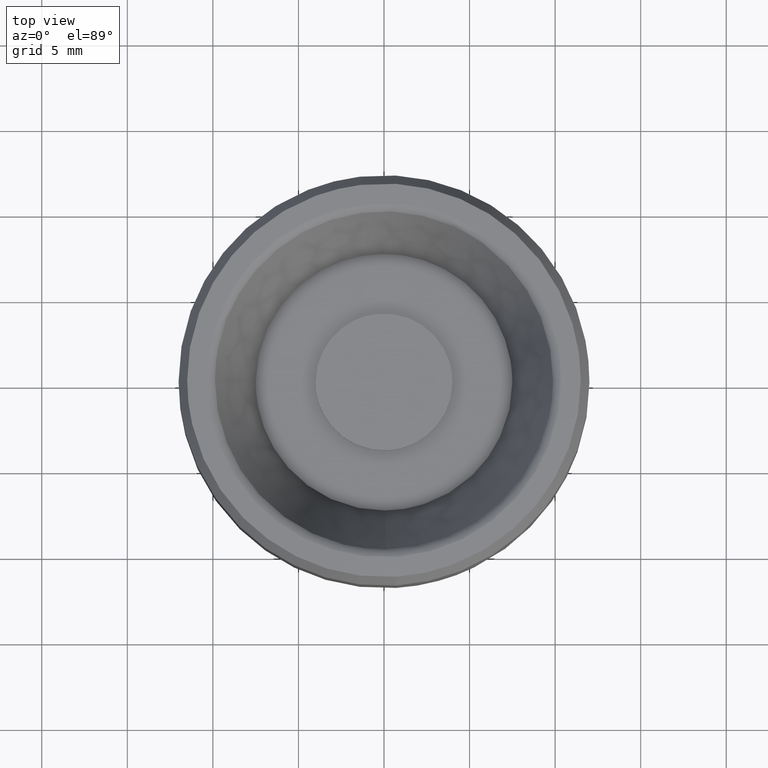
[diagram: clean part render]
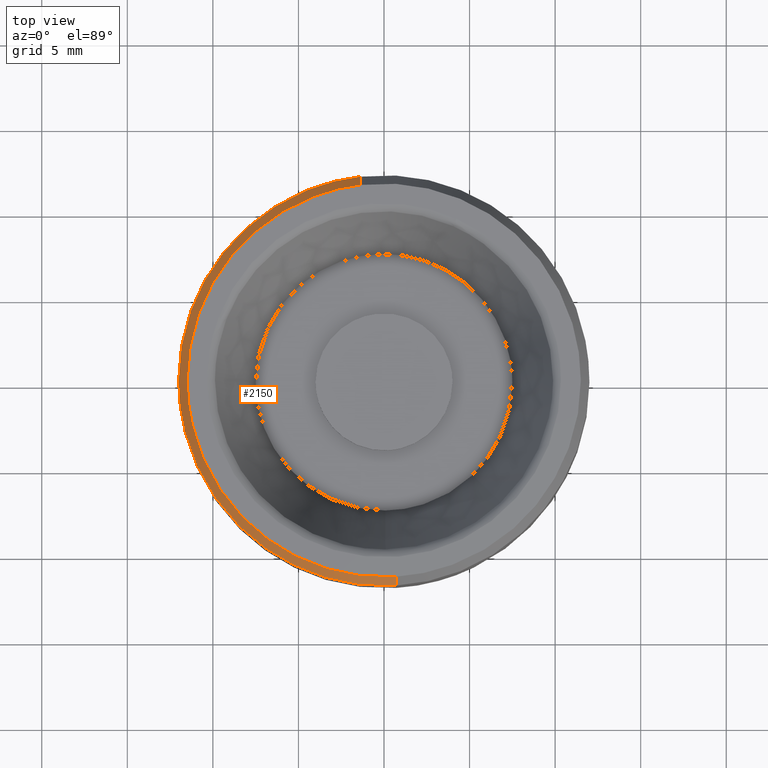
[diagram: same view with one face highlighted and labeled with its STEP entity id]
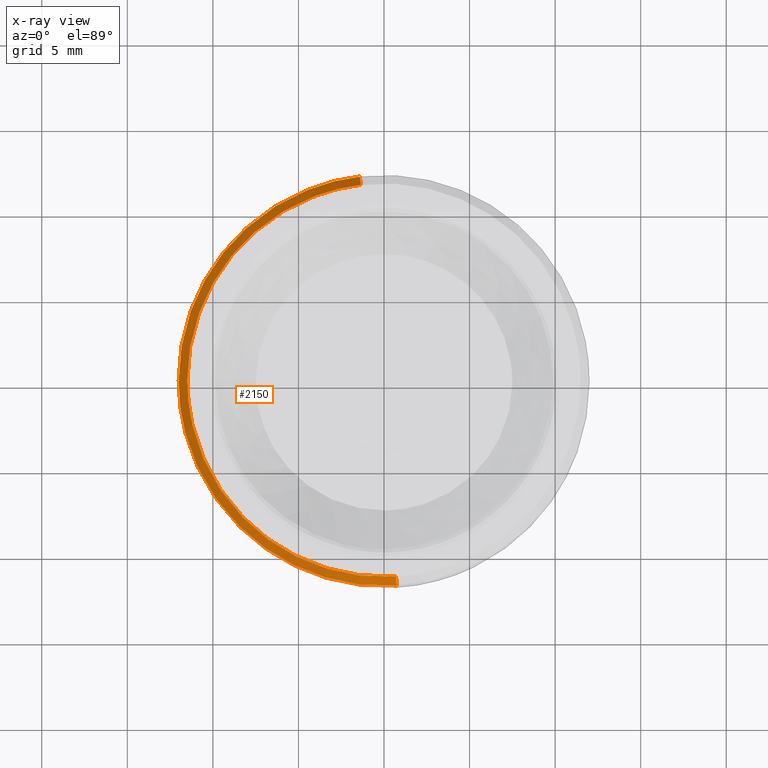
[diagram: x-ray of the same camera — body ghosted, the highlighted face saturated]
A machine part, top view. The second image highlights one B-rep face of the part: STEP entity #2150.
The next image is the same camera in x-ray: the body ghosted, the highlighted face saturated — about 0% of this face is hidden behind the body in this view.
In plain terms, the highlighted face is a freeform B-spline surface patch.
Its self-contained STEP definition (entity closure, byte-faithful):
#1916=CARTESIAN_POINT('',(0.732582477503648,-11.977617581412879,14.999999997847270));
#1917=VERTEX_POINT('',#1916);
#1970=CARTESIAN_POINT('',(-1.416410815881811,11.916114316363981,14.999999999999870));
#1971=VERTEX_POINT('',#1970);
#1991=CARTESIAN_POINT('',(-12.0,0.0,15.0));
#1992=VERTEX_POINT('',#1991);
#1993=CARTESIAN_POINT('',(0.732582477503648,-11.977617581412883,14.999999997847269));
#1994=CARTESIAN_POINT('',(0.366633165705202,-12.000000000000004,14.999999999999996));
#1995=CARTESIAN_POINT('',(0.0,-12.0,15.0));
#1996=CARTESIAN_POINT('',(-12.0,-12.0,14.999999999999995));
#1997=CARTESIAN_POINT('',(-12.0,0.0,15.0));
#2005=(BOUNDED_CURVE()B_SPLINE_CURVE(2,(#1993,#1994,#1995,#1996,#1997),.UNSPECIFIED.,.F.,.U.)B_SPLINE_CURVE_WITH_KNOTS((3,2,3),(0.739332962066073,0.750000000000000,1.0),.UNSPECIFIED.)CURVE()GEOMETRIC_REPRESENTATION_ITEM()RATIONAL_B_SPLINE_CURVE((0.976072041296225,0.987502787697308,1.0,0.707106781186548,1.0))REPRESENTATION_ITEM(''));
#2006=EDGE_CURVE('',#1917,#1992,#2005,.T.);
#2008=CARTESIAN_POINT('',(-12.0,0.0,15.0));
#2009=CARTESIAN_POINT('',(-11.999999999999998,10.658094311415148,14.999999999999996));
#2010=CARTESIAN_POINT('',(-1.416410815881811,11.916114316363984,14.999999999999874));
#2018=(BOUNDED_CURVE()B_SPLINE_CURVE(2,(#2008,#2009,#2010),.UNSPECIFIED.,.F.,.U.)B_SPLINE_CURVE_WITH_KNOTS((3,3),(0.0,0.229562473515624),.UNSPECIFIED.)CURVE()GEOMETRIC_REPRESENTATION_ITEM()RATIONAL_B_SPLINE_CURVE((1.0,0.731050832852923,0.956026754187847))REPRESENTATION_ITEM(''));
#2019=EDGE_CURVE('',#1992,#1971,#2018,.T.);
#2047=CARTESIAN_POINT('',(-1.357393698567088,11.419609553181770,15.999999999997391));
#2048=VERTEX_POINT('',#2047);
#2049=CARTESIAN_POINT('',(-1.357393698567088,11.419609553181770,15.999999999997391));
#2050=CARTESIAN_POINT('',(-1.416410815881811,11.916114316363981,14.999999999999870));
#2051=QUASI_UNIFORM_CURVE('',1,(#2049,#2050),.UNSPECIFIED.,.F.,.U.);
#2052=EDGE_CURVE('',#2048,#1971,#2051,.T.);
#2071=CARTESIAN_POINT('',(0.702058204661910,-11.478550181851800,15.999999999997989));
#2072=VERTEX_POINT('',#2071);
#2086=CARTESIAN_POINT('',(0.702058204661910,-11.478550181851800,15.999999999997989));
#2087=CARTESIAN_POINT('',(0.732582477503648,-11.977617581412879,14.999999997847270));
#2088=QUASI_UNIFORM_CURVE('',1,(#2086,#2087),.UNSPECIFIED.,.F.,.U.);
#2089=EDGE_CURVE('',#2072,#1917,#2088,.T.);
#2096=CARTESIAN_POINT('',(0.701295097906670,-11.466073496871189,16.024999999999999));
#2097=CARTESIAN_POINT('',(-10.764778398964523,-12.167368594777862,16.024999999999995));
#2098=CARTESIAN_POINT('',(-11.466073496871189,-0.701295097906670,16.024999999999999));
#2099=CARTESIAN_POINT('',(-12.128343934964906,10.126730851018767,16.025000000000002));
#2100=CARTESIAN_POINT('',(-1.355918270619513,11.407196934102613,16.025000000000002));
#2101=CARTESIAN_POINT('',(0.733364658831074,-11.990406183167179,14.974375000000000));
#2102=CARTESIAN_POINT('',(-11.257041524336104,-12.723770841998254,14.974375000000004));
#2103=CARTESIAN_POINT('',(-11.990406183167179,-0.733364658831074,14.974375000000000));
#2104=CARTESIAN_POINT('',(-12.682961621435965,10.589816666050391,14.974375000000006));
#2105=CARTESIAN_POINT('',(-1.417923129512642,11.928837250920528,14.974375000000004));
#2113=(BOUNDED_SURFACE()B_SPLINE_SURFACE(2,1,((#2096,#2101),(#2097,#2102),(#2098,#2103),(#2099,#2104),(#2100,#2105)),.UNSPECIFIED.,.F.,.F.,.U.)B_SPLINE_SURFACE_WITH_KNOTS((3,2,3),(2,2),(0.0,19.903479438980170,39.010819700401143),(0.0,1.0),.UNSPECIFIED.)GEOMETRIC_REPRESENTATION_ITEM()RATIONAL_B_SPLINE_SURFACE(((1.0,1.0),(0.707106781186548,0.707106781186548),(1.0,1.0),(0.718822509939086,0.718822509939086),(0.977505800795127,0.977505800795127)))REPRESENTATION_ITEM('')SURFACE());
#2114=ORIENTED_EDGE('',*,*,#2019,.F.);
#2115=ORIENTED_EDGE('',*,*,#2006,.F.);
#2116=ORIENTED_EDGE('',*,*,#2089,.F.);
#2117=CARTESIAN_POINT('',(-11.500000000000000,0.0,16.0));
#2118=VERTEX_POINT('',#2117);
#2119=CARTESIAN_POINT('',(0.702058204661910,-11.478550181851803,15.999999999997987));
#2120=CARTESIAN_POINT('',(0.351356777944796,-11.500000000000004,15.999999999999996));
#2121=CARTESIAN_POINT('',(0.0,-11.500000000000000,16.0));
#2122=CARTESIAN_POINT('',(-11.500000000000000,-11.500000000000000,15.999999999999998));
#2123=CARTESIAN_POINT('',(-11.500000000000000,0.0,16.0));
#2131=(BOUNDED_CURVE()B_SPLINE_CURVE(2,(#2119,#2120,#2121,#2122,#2123),.UNSPECIFIED.,.F.,.U.)B_SPLINE_CURVE_WITH_KNOTS((3,2,3),(0.739332962241638,0.750000000000000,1.0),.UNSPECIFIED.)CURVE()GEOMETRIC_REPRESENTATION_ITEM()RATIONAL_B_SPLINE_CURVE((0.976072041672493,0.987502787902995,1.0,0.707106781186548,1.0))REPRESENTATION_ITEM(''));
#2132=EDGE_CURVE('',#2072,#2118,#2131,.T.);
#2133=ORIENTED_EDGE('',*,*,#2132,.T.);
#2134=CARTESIAN_POINT('',(-11.500000000000000,0.0,16.0));
#2135=CARTESIAN_POINT('',(-11.499999999999998,10.214007048415123,16.000000000000004));
#2136=CARTESIAN_POINT('',(-1.357393698567089,11.419609553181765,15.999999999997396));
#2144=(BOUNDED_CURVE()B_SPLINE_CURVE(2,(#2134,#2135,#2136),.UNSPECIFIED.,.F.,.U.)B_SPLINE_CURVE_WITH_KNOTS((3,3),(0.0,0.229562473515224),.UNSPECIFIED.)CURVE()GEOMETRIC_REPRESENTATION_ITEM()RATIONAL_B_SPLINE_CURVE((1.0,0.731050832853393,0.956026754187061))REPRESENTATION_ITEM(''));
#2145=EDGE_CURVE('',#2118,#2048,#2144,.T.);
#2146=ORIENTED_EDGE('',*,*,#2145,.T.);
#2147=ORIENTED_EDGE('',*,*,#2052,.T.);
#2148=EDGE_LOOP('',(#2114,#2115,#2116,#2133,#2146,#2147));
#2149=FACE_OUTER_BOUND('',#2148,.T.);
#2150=ADVANCED_FACE('',(#2149),#2113,.T.);